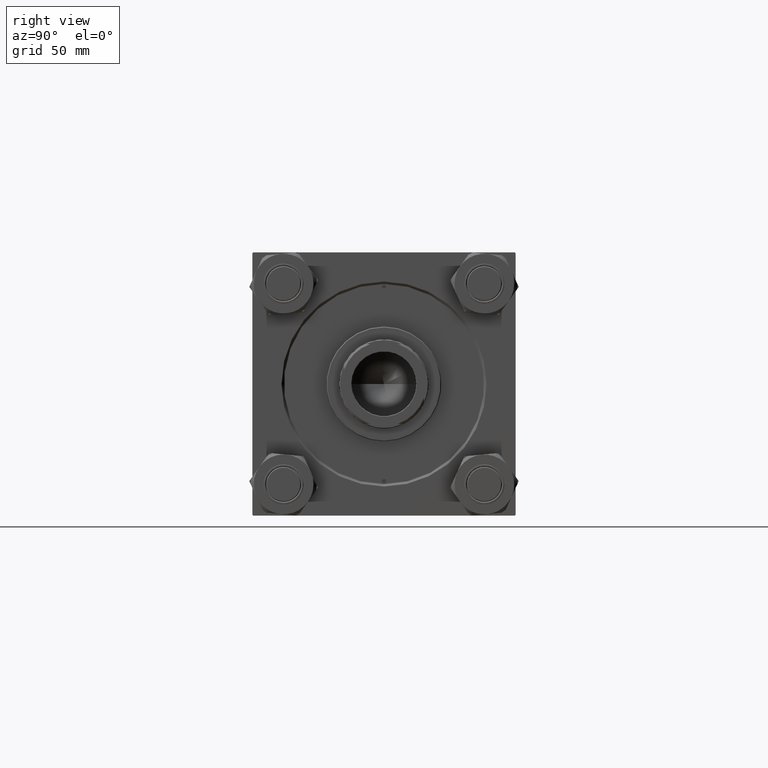
[diagram: clean part render]
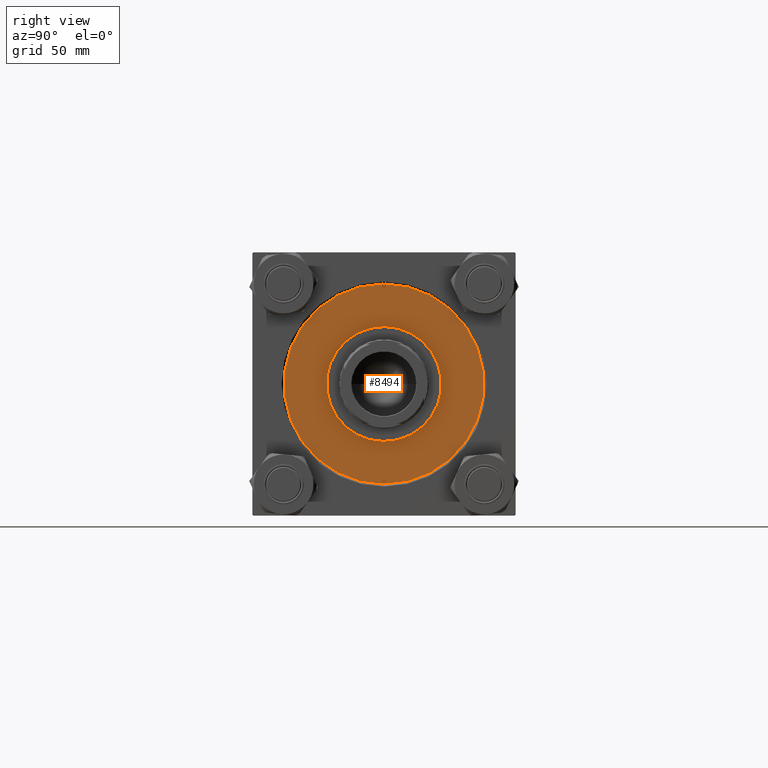
[diagram: same view with one face highlighted and labeled with its STEP entity id]
A machine part, right view. The second image highlights one B-rep face of the part: STEP entity #8494.
In plain terms, the highlighted planar face has unit normal (1, 0, -0).
Its self-contained STEP definition (entity closure, byte-faithful):
#324 = ORIENTED_EDGE ( 'NONE', *, *, #48740, .F. ) ;
#390 = DIRECTION ( 'NONE',  ( 0.000000000000000000, 0.000000000000000000, 1.000000000000000000 ) ) ;
#533 = VERTEX_POINT ( 'NONE', #41007 ) ;
#1140 = CARTESIAN_POINT ( 'NONE',  ( 0.000000000000000000, 0.000000000000000000, 28.69999999999999929 ) ) ;
#1808 = DIRECTION ( 'NONE',  ( 0.000000000000000000, 0.000000000000000000, 1.000000000000000000 ) ) ;
#2789 = EDGE_LOOP ( 'NONE', ( #43423, #36584 ) ) ;
#3275 = CARTESIAN_POINT ( 'NONE',  ( 36.00000000000000000, 4.408728476930470856E-15, 28.69999999999999929 ) ) ;
#4048 = ORIENTED_EDGE ( 'NONE', *, *, #40403, .T. ) ;
#4892 = CIRCLE ( 'NONE', #38295, 36.00000000000000000 ) ;
#5522 = CARTESIAN_POINT ( 'NONE',  ( -62.75000000000000000, 0.000000000000000000, 28.69999999999999929 ) ) ;
#7227 = ORIENTED_EDGE ( 'NONE', *, *, #46812, .F. ) ;
#7377 = CARTESIAN_POINT ( 'NONE',  ( -36.00000000000000000, 0.000000000000000000, 28.69999999999999929 ) ) ;
#8078 = CIRCLE ( 'NONE', #17871, 1.250000000000001110 ) ;
#8406 = CARTESIAN_POINT ( 'NONE',  ( 61.00000000000000000, 0.000000000000000000, 28.69999999999999929 ) ) ;
#8494 = ADVANCED_FACE ( 'NONE', ( #11938, #19581, #23174, #15783 ), #39726, .T. ) ;
#8647 = CIRCLE ( 'NONE', #34736, 62.75000000000000000 ) ;
#10664 = CIRCLE ( 'NONE', #20440, 36.00000000000000000 ) ;
#11938 = FACE_BOUND ( 'NONE', #37675, .T. ) ;
#14363 = VERTEX_POINT ( 'NONE', #7377 ) ;
#15783 = FACE_OUTER_BOUND ( 'NONE', #25979, .T. ) ;
#15915 = CARTESIAN_POINT ( 'NONE',  ( 62.75000000000000000, 7.684658664649641591E-15, 28.69999999999999929 ) ) ;
#16185 = DIRECTION ( 'NONE',  ( 1.000000000000000000, 0.000000000000000000, 0.000000000000000000 ) ) ;
#16360 = DIRECTION ( 'NONE',  ( 1.000000000000000000, 0.000000000000000000, 0.000000000000000000 ) ) ;
#16739 = AXIS2_PLACEMENT_3D ( 'NONE', #23659, #19829, #35395 ) ;
#16943 = CARTESIAN_POINT ( 'NONE',  ( -61.00000000000000000, 0.000000000000000000, 28.69999999999999929 ) ) ;
#17663 = VERTEX_POINT ( 'NONE', #3275 ) ;
#17871 = AXIS2_PLACEMENT_3D ( 'NONE', #16943, #32492, #44247 ) ;
#18201 = CIRCLE ( 'NONE', #36908, 1.250000000000001110 ) ;
#18269 = EDGE_CURVE ( 'NONE', #34544, #50478, #8078, .T. ) ;
#19581 = FACE_BOUND ( 'NONE', #2789, .T. ) ;
#19829 = DIRECTION ( 'NONE',  ( 0.000000000000000000, 0.000000000000000000, 1.000000000000000000 ) ) ;
#20318 = AXIS2_PLACEMENT_3D ( 'NONE', #34580, #50390, #37640 ) ;
#20326 = DIRECTION ( 'NONE',  ( 0.000000000000000000, 0.000000000000000000, 1.000000000000000000 ) ) ;
#20440 = AXIS2_PLACEMENT_3D ( 'NONE', #46363, #38458, #50442 ) ;
#21959 = VERTEX_POINT ( 'NONE', #37148 ) ;
#23174 = FACE_BOUND ( 'NONE', #23310, .T. ) ;
#23310 = EDGE_LOOP ( 'NONE', ( #7227, #324 ) ) ;
#23430 = VERTEX_POINT ( 'NONE', #5522 ) ;
#23659 = CARTESIAN_POINT ( 'NONE',  ( 0.000000000000000000, 0.000000000000000000, 28.69999999999999929 ) ) ;
#24830 = VERTEX_POINT ( 'NONE', #15915 ) ;
#25979 = EDGE_LOOP ( 'NONE', ( #4048, #37465 ) ) ;
#27475 = DIRECTION ( 'NONE',  ( 1.000000000000000000, 0.000000000000000000, -0.000000000000000000 ) ) ;
#28024 = DIRECTION ( 'NONE',  ( 0.000000000000000000, 0.000000000000000000, 1.000000000000000000 ) ) ;
#28588 = EDGE_CURVE ( 'NONE', #533, #21959, #18201, .T. ) ;
#28963 = DIRECTION ( 'NONE',  ( 1.000000000000000000, 0.000000000000000000, 0.000000000000000000 ) ) ;
#29066 = CARTESIAN_POINT ( 'NONE',  ( -62.25000000000000000, 1.530808498934184175E-16, 28.69999999999999929 ) ) ;
#31075 = AXIS2_PLACEMENT_3D ( 'NONE', #39235, #20326, #27475 ) ;
#32492 = DIRECTION ( 'NONE',  ( 0.000000000000000000, 0.000000000000000000, 1.000000000000000000 ) ) ;
#34220 = CIRCLE ( 'NONE', #20318, 1.250000000000001110 ) ;
#34544 = VERTEX_POINT ( 'NONE', #29066 ) ;
#34580 = CARTESIAN_POINT ( 'NONE',  ( 61.00000000000000000, 0.000000000000000000, 28.69999999999999929 ) ) ;
#34736 = AXIS2_PLACEMENT_3D ( 'NONE', #36883, #44541, #28963 ) ;
#35395 = DIRECTION ( 'NONE',  ( 1.000000000000000000, 0.000000000000000000, 0.000000000000000000 ) ) ;
#35453 = EDGE_CURVE ( 'NONE', #50478, #34544, #50082, .T. ) ;
#36584 = ORIENTED_EDGE ( 'NONE', *, *, #28588, .F. ) ;
#36745 = CARTESIAN_POINT ( 'NONE',  ( -61.00000000000000000, 0.000000000000000000, 28.69999999999999929 ) ) ;
#36883 = CARTESIAN_POINT ( 'NONE',  ( 0.000000000000000000, 0.000000000000000000, 28.69999999999999929 ) ) ;
#36908 = AXIS2_PLACEMENT_3D ( 'NONE', #8406, #28024, #43606 ) ;
#37017 = AXIS2_PLACEMENT_3D ( 'NONE', #36745, #1808, #16360 ) ;
#37047 = EDGE_CURVE ( 'NONE', #24830, #23430, #48529, .T. ) ;
#37148 = CARTESIAN_POINT ( 'NONE',  ( 62.25000000000000000, 0.000000000000000000, 28.69999999999999929 ) ) ;
#37465 = ORIENTED_EDGE ( 'NONE', *, *, #37047, .T. ) ;
#37640 = DIRECTION ( 'NONE',  ( 1.000000000000000000, 0.000000000000000000, 0.000000000000000000 ) ) ;
#37675 = EDGE_LOOP ( 'NONE', ( #47101, #44732 ) ) ;
#38295 = AXIS2_PLACEMENT_3D ( 'NONE', #1140, #390, #16185 ) ;
#38458 = DIRECTION ( 'NONE',  ( 0.000000000000000000, 0.000000000000000000, 1.000000000000000000 ) ) ;
#39235 = CARTESIAN_POINT ( 'NONE',  ( 0.000000000000000000, 0.000000000000000000, 28.69999999999999929 ) ) ;
#39270 = CARTESIAN_POINT ( 'NONE',  ( -59.75000000000000000, 0.000000000000000000, 28.69999999999999929 ) ) ;
#39726 = PLANE ( 'NONE',  #31075 ) ;
#40403 = EDGE_CURVE ( 'NONE', #23430, #24830, #8647, .T. ) ;
#41007 = CARTESIAN_POINT ( 'NONE',  ( 59.75000000000000000, 1.530808498934184175E-16, 28.69999999999999929 ) ) ;
#43423 = ORIENTED_EDGE ( 'NONE', *, *, #47674, .F. ) ;
#43606 = DIRECTION ( 'NONE',  ( 1.000000000000000000, 0.000000000000000000, 0.000000000000000000 ) ) ;
#44247 = DIRECTION ( 'NONE',  ( 1.000000000000000000, 0.000000000000000000, 0.000000000000000000 ) ) ;
#44541 = DIRECTION ( 'NONE',  ( 0.000000000000000000, 0.000000000000000000, 1.000000000000000000 ) ) ;
#44732 = ORIENTED_EDGE ( 'NONE', *, *, #18269, .F. ) ;
#46363 = CARTESIAN_POINT ( 'NONE',  ( 0.000000000000000000, 0.000000000000000000, 28.69999999999999929 ) ) ;
#46812 = EDGE_CURVE ( 'NONE', #14363, #17663, #10664, .T. ) ;
#47101 = ORIENTED_EDGE ( 'NONE', *, *, #35453, .F. ) ;
#47674 = EDGE_CURVE ( 'NONE', #21959, #533, #34220, .T. ) ;
#48529 = CIRCLE ( 'NONE', #16739, 62.75000000000000000 ) ;
#48740 = EDGE_CURVE ( 'NONE', #17663, #14363, #4892, .T. ) ;
#50082 = CIRCLE ( 'NONE', #37017, 1.250000000000001110 ) ;
#50390 = DIRECTION ( 'NONE',  ( 0.000000000000000000, 0.000000000000000000, 1.000000000000000000 ) ) ;
#50442 = DIRECTION ( 'NONE',  ( 1.000000000000000000, 0.000000000000000000, 0.000000000000000000 ) ) ;
#50478 = VERTEX_POINT ( 'NONE', #39270 ) ;